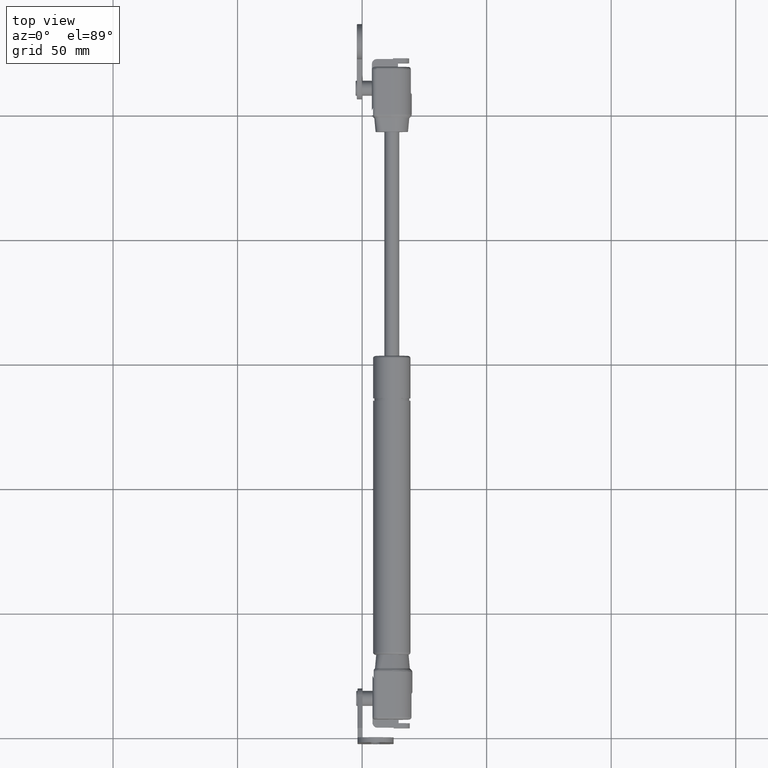
[diagram: clean part render]
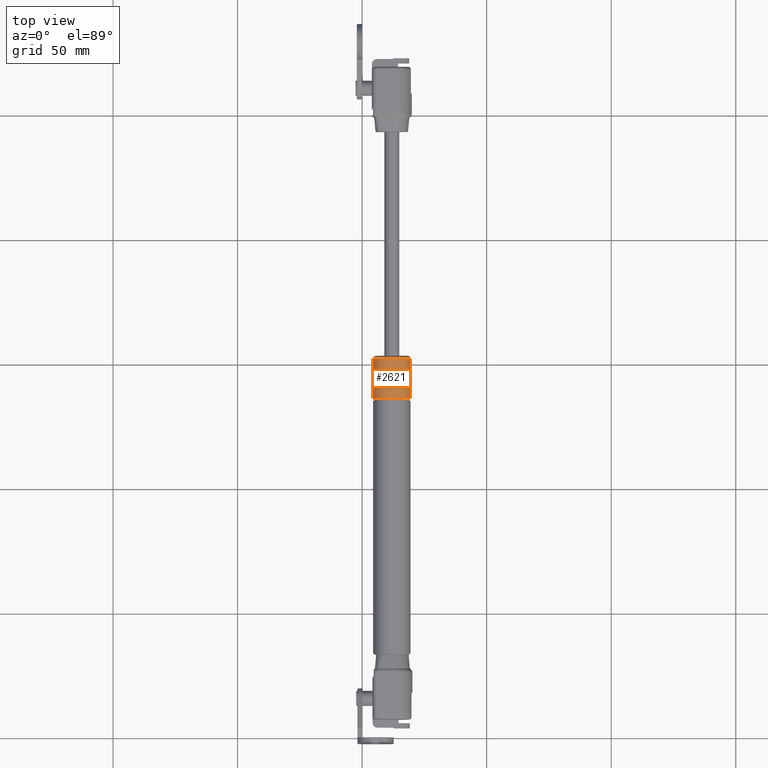
[diagram: same view with one face highlighted and labeled with its STEP entity id]
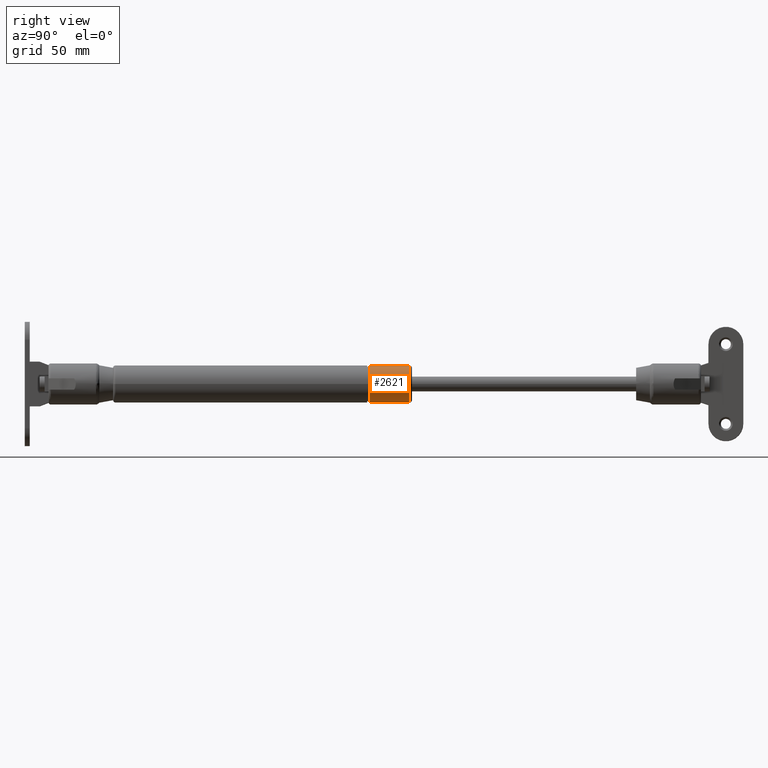
[diagram: same view with one face highlighted and labeled with its STEP entity id]
A machine part, top view. The second image highlights one B-rep face of the part: STEP entity #2621.
A second angle (right view) of the same face is appended — the face is thin or edge-on in the first view.
In plain terms, the highlighted cylindrical surface (bore or boss wall) has radius 7.5 mm, axis along (-0, -1, 0).
Its self-contained STEP definition (entity closure, byte-faithful):
#165=FACE_BOUND('',#593,.T.);
#396=FACE_OUTER_BOUND('',#592,.T.);
#592=EDGE_LOOP('',(#2393));
#593=EDGE_LOOP('',(#2394));
#1101=CIRCLE('',#2904,7.5);
#1103=CIRCLE('',#2908,7.5);
#1333=VERTEX_POINT('',#5135);
#1335=VERTEX_POINT('',#5141);
#1690=EDGE_CURVE('',#1333,#1333,#1101,.T.);
#1692=EDGE_CURVE('',#1335,#1335,#1103,.T.);
#2393=ORIENTED_EDGE('',*,*,#1692,.T.);
#2394=ORIENTED_EDGE('',*,*,#1690,.F.);
#2462=CYLINDRICAL_SURFACE('',#2907,7.5);
#2621=ADVANCED_FACE('',(#396,#165),#2462,.T.);
#2904=AXIS2_PLACEMENT_3D('',#5136,#3646,#3647);
#2907=AXIS2_PLACEMENT_3D('',#5140,#3652,#3653);
#2908=AXIS2_PLACEMENT_3D('',#5142,#3654,#3655);
#3646=DIRECTION('center_axis',(0.,1.,0.));
#3647=DIRECTION('ref_axis',(-1.,0.,1.22464679914735E-16));
#3652=DIRECTION('center_axis',(0.,-1.,0.));
#3653=DIRECTION('ref_axis',(1.,0.,0.));
#3654=DIRECTION('center_axis',(0.,1.,0.));
#3655=DIRECTION('ref_axis',(1.,0.,0.));
#5135=CARTESIAN_POINT('',(7.5,-0.999999999999996,-1.83697019872103E-15));
#5136=CARTESIAN_POINT('Origin',(0.,-0.999999999999996,0.));
#5140=CARTESIAN_POINT('Origin',(0.,-60.,0.));
#5141=CARTESIAN_POINT('',(7.5,-17.,0.));
#5142=CARTESIAN_POINT('Origin',(0.,-17.,0.));